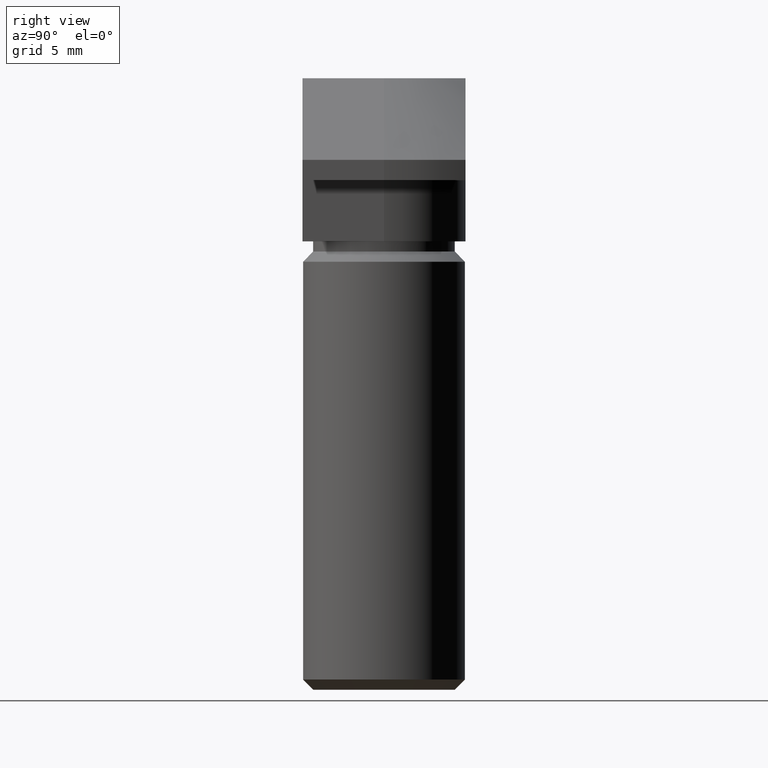
[diagram: clean part render]
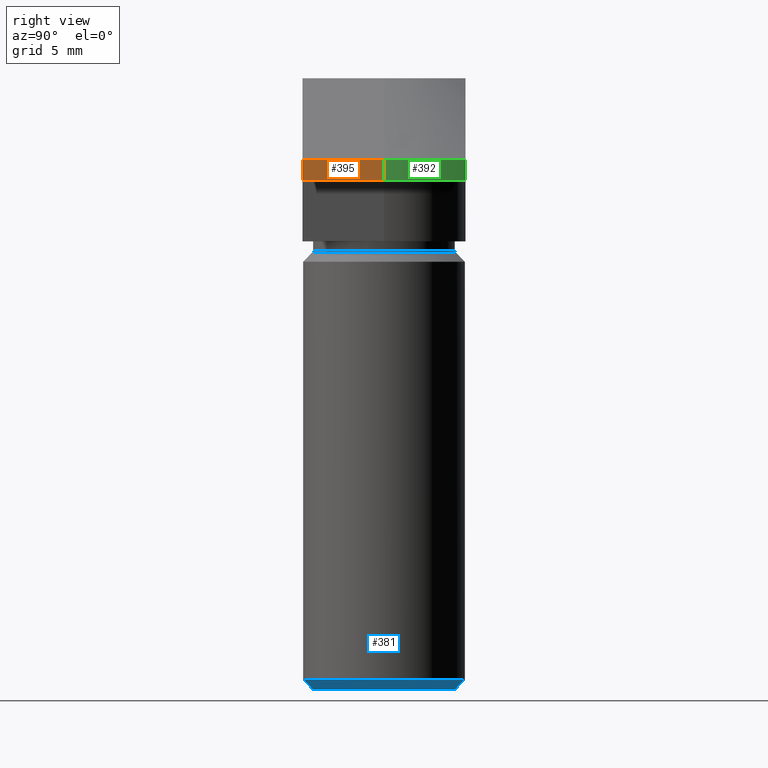
[diagram: same view with three faces highlighted in distinct colors, each labeled with its STEP entity id]
A machine part, right view with three faces highlighted in distinct colors.
Their STEP definitions:

[orange] entity #395 — the highlighted planar face has unit normal (1, 0, 0).
#24=PLANE('',#456);
#53=FACE_OUTER_BOUND('',#77,.T.);
#77=EDGE_LOOP('',(#333,#334,#335,#336));
#104=LINE('',#646,#142);
#108=LINE('',#661,#146);
#112=LINE('',#678,#150);
#113=LINE('',#679,#151);
#142=VECTOR('',#531,10.);
#146=VECTOR('',#543,10.);
#150=VECTOR('',#557,10.);
#151=VECTOR('',#558,10.);
#196=VERTEX_POINT('',#643);
#197=VERTEX_POINT('',#645);
#201=VERTEX_POINT('',#656);
#206=VERTEX_POINT('',#677);
#241=EDGE_CURVE('',#196,#197,#104,.T.);
#248=EDGE_CURVE('',#201,#196,#108,.T.);
#255=EDGE_CURVE('',#201,#206,#112,.T.);
#256=EDGE_CURVE('',#197,#206,#113,.T.);
#333=ORIENTED_EDGE('',*,*,#248,.F.);
#334=ORIENTED_EDGE('',*,*,#255,.T.);
#335=ORIENTED_EDGE('',*,*,#256,.F.);
#336=ORIENTED_EDGE('',*,*,#241,.F.);
#395=ADVANCED_FACE('',(#53),#24,.T.);
#456=AXIS2_PLACEMENT_3D('',#676,#555,#556);
#531=DIRECTION('',(0.,-1.,0.));
#543=DIRECTION('',(0.,0.,-1.));
#555=DIRECTION('center_axis',(1.,0.,0.));
#556=DIRECTION('ref_axis',(0.,0.,-1.));
#557=DIRECTION('',(0.,-1.,0.));
#558=DIRECTION('',(0.,0.,1.));
#643=CARTESIAN_POINT('',(9.,0.,-5.));
#645=CARTESIAN_POINT('',(9.,-4.,-5.));
#646=CARTESIAN_POINT('',(9.,0.,-5.));
#656=CARTESIAN_POINT('',(9.,0.,-4.));
#661=CARTESIAN_POINT('',(9.,0.,-4.5));
#676=CARTESIAN_POINT('Origin',(9.,0.,-4.));
#677=CARTESIAN_POINT('',(9.,-4.,-4.));
#678=CARTESIAN_POINT('',(9.,0.,-4.));
#679=CARTESIAN_POINT('',(9.,-4.,-5.));

[blue] entity #381 — the highlighted conical surface has half-angle 45 deg.
#39=FACE_OUTER_BOUND('',#62,.T.);
#62=EDGE_LOOP('',(#273,#274,#275,#276));
#86=LINE('',#593,#124);
#124=VECTOR('',#481,3.75);
#162=CIRCLE('',#429,4.);
#163=CIRCLE('',#431,3.5);
#177=VERTEX_POINT('',#587);
#178=VERTEX_POINT('',#591);
#213=EDGE_CURVE('',#177,#177,#162,.T.);
#215=EDGE_CURVE('',#178,#178,#163,.T.);
#216=EDGE_CURVE('',#178,#177,#86,.T.);
#273=ORIENTED_EDGE('',*,*,#215,.T.);
#274=ORIENTED_EDGE('',*,*,#216,.T.);
#275=ORIENTED_EDGE('',*,*,#213,.T.);
#276=ORIENTED_EDGE('',*,*,#216,.F.);
#376=CONICAL_SURFACE('',#430,3.75,0.78539816339745);
#381=ADVANCED_FACE('',(#39),#376,.T.);
#429=AXIS2_PLACEMENT_3D('',#588,#474,#475);
#430=AXIS2_PLACEMENT_3D('',#590,#477,#478);
#431=AXIS2_PLACEMENT_3D('',#592,#479,#480);
#474=DIRECTION('center_axis',(0.,0.,-1.));
#475=DIRECTION('ref_axis',(1.,0.,0.));
#477=DIRECTION('center_axis',(0.,0.,1.));
#478=DIRECTION('ref_axis',(1.,0.,0.));
#479=DIRECTION('center_axis',(0.,0.,1.));
#480=DIRECTION('ref_axis',(1.,0.,0.));
#481=DIRECTION('',(-0.707106781186549,8.65956056235495E-17,0.707106781186546));
#587=CARTESIAN_POINT('',(-4.,4.89858719658941E-16,-29.5));
#588=CARTESIAN_POINT('Origin',(0.,0.,-29.5));
#590=CARTESIAN_POINT('Origin',(0.,0.,-29.75));
#591=CARTESIAN_POINT('',(-3.5,-4.28626379701574E-16,-30.));
#592=CARTESIAN_POINT('Origin',(0.,0.,-30.));
#593=CARTESIAN_POINT('',(-3.75,4.59242549680257E-16,-29.75));

[green] entity #392 — the highlighted cylindrical surface (partial cylindrical patch) has radius 9 mm, axis along (0, 0, 1).
#35=CYLINDRICAL_SURFACE('',#451,9.);
#50=FACE_OUTER_BOUND('',#74,.T.);
#74=EDGE_LOOP('',(#321,#322,#323,#324));
#107=LINE('',#660,#145);
#108=LINE('',#661,#146);
#145=VECTOR('',#542,10.);
#146=VECTOR('',#543,10.);
#170=CIRCLE('',#447,9.);
#172=CIRCLE('',#450,9.);
#195=VERTEX_POINT('',#641);
#196=VERTEX_POINT('',#643);
#199=VERTEX_POINT('',#650);
#201=VERTEX_POINT('',#656);
#240=EDGE_CURVE('',#195,#196,#170,.T.);
#246=EDGE_CURVE('',#201,#199,#172,.T.);
#247=EDGE_CURVE('',#199,#195,#107,.T.);
#248=EDGE_CURVE('',#201,#196,#108,.T.);
#321=ORIENTED_EDGE('',*,*,#247,.F.);
#322=ORIENTED_EDGE('',*,*,#246,.F.);
#323=ORIENTED_EDGE('',*,*,#248,.T.);
#324=ORIENTED_EDGE('',*,*,#240,.F.);
#392=ADVANCED_FACE('',(#50),#35,.T.);
#447=AXIS2_PLACEMENT_3D('',#644,#529,#530);
#450=AXIS2_PLACEMENT_3D('',#658,#538,#539);
#451=AXIS2_PLACEMENT_3D('',#659,#540,#541);
#529=DIRECTION('center_axis',(0.,0.,-1.));
#530=DIRECTION('ref_axis',(1.,0.,0.));
#538=DIRECTION('center_axis',(2.9781283147877E-16,2.9781283147877E-16,1.));
#539=DIRECTION('ref_axis',(1.,1.2335811384724E-16,-3.08395284618099E-16));
#540=DIRECTION('center_axis',(0.,0.,1.));
#541=DIRECTION('ref_axis',(1.,0.,0.));
#542=DIRECTION('',(0.,0.,-1.));
#543=DIRECTION('',(0.,0.,-1.));
#641=CARTESIAN_POINT('',(8.06225774829855,4.,-5.));
#643=CARTESIAN_POINT('',(9.,0.,-5.));
#644=CARTESIAN_POINT('Origin',(0.,0.,-5.));
#650=CARTESIAN_POINT('',(8.06225774829855,4.,-4.));
#656=CARTESIAN_POINT('',(9.,0.,-4.));
#658=CARTESIAN_POINT('Origin',(-1.11022302462516E-15,-1.11022302462516E-15,
-4.));
#659=CARTESIAN_POINT('Origin',(0.,0.,-4.5));
#660=CARTESIAN_POINT('',(8.06225774829855,4.,-4.5));
#661=CARTESIAN_POINT('',(9.,0.,-4.5));